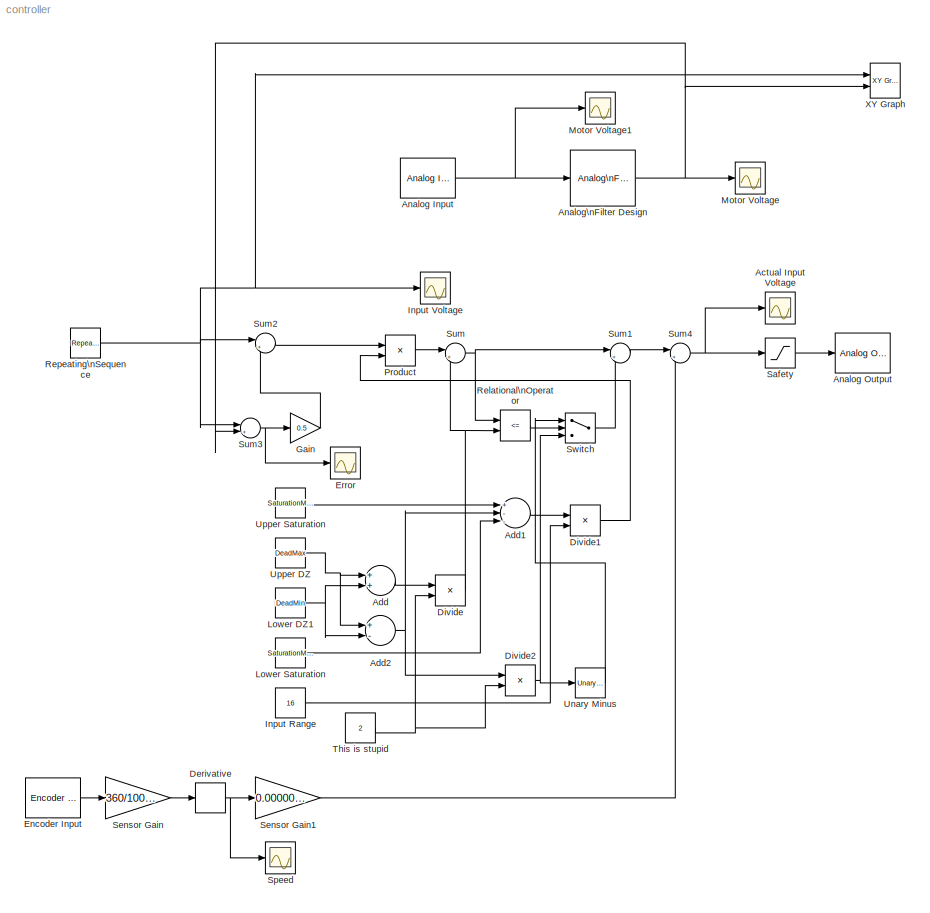
MODEL controller
KIND model
BLOCK [Scope] Actual Input Voltage
  DataFormat = Array
  Floating = off
  MaxDataPoints = 60000
  NumInputPorts = 1
  Ports = [1]
  SampleTime = 0
  SaveName = position5
  TimeRange = 60
  YMax = 9
  YMin = -9
BLOCK [Sum] Add
  CollapseMode = All dimensions
  InputSameDT = off
  OutDataType = sfix(16)
  OutDataTypeMode = Inherit via internal rule
  OutScaling = 2^-10
  Ports = [2, 1]
  SaturateOnIntegerOverflow = off
BLOCK [Sum] Add1
  CollapseMode = All dimensions
  InputSameDT = off
  Inputs = +--
  OutDataType = sfix(16)
  OutDataTypeMode = Inherit via internal rule
  OutScaling = 2^-10
  Ports = [3, 1]
  SaturateOnIntegerOverflow = off
BLOCK [Sum] Add2
  CollapseMode = All dimensions
  InputSameDT = off
  Inputs = +-
  OutDataType = sfix(16)
  OutDataTypeMode = Inherit via internal rule
  OutScaling = 2^-10
  Ports = [2, 1]
  SaturateOnIntegerOverflow = off
BLOCK [Reference] Analog Input  REF=rtwinlib/Analog Input
  AttributesFormatString = Sensoray\\nModel 626 [auto]
  Channels = 1
  DataType = 1
  DrvAddress = 4294967295
  DrvName = Sensoray/Model_626
  DrvOptions = zeros(1,0)
  Ports = [0, 1]
  RangeMode = 1
  SampleTime = 0.001
  SourceBlock = rtwinlib/Analog Input
  SourceType = RTWin Analog Input
  VoltRange = 1
BLOCK [Reference] Analog Output  REF=rtwinlib/Analog Output
  AttributesFormatString = Sensoray\\nModel 626 [auto]
  Channels = 1
  DrvAddress = 4294967295
  DrvName = Sensoray/Model_626
  DrvOptions = zeros(1,0)
  FinalValue = 0
  InitialValue = 0
  Ports = [1]
  RangeMode = 1
  SampleTime = 0.001
  SourceBlock = rtwinlib/Analog Output
  SourceType = RTWin Analog Output
  VoltRange = 1
BLOCK [Reference] Analog\nFilter Design  REF=dsparch4/Analog\nFilter Design
  N = 10
  Ports = [1, 1]
  Rp = 2
  Rs = 40
  SourceBlock = dsparch4/Analog\nFilter Design
  SourceType = Analog Filter Design
  Whi = 80
  Wlo = 12
  filttype = Lowpass
  method = Butterworth
BLOCK [Derivative] Derivative
BLOCK [Product] Divide
  CollapseMode = All dimensions
  InputSameDT = off
  Inputs = */
  OutDataType = sfix(16)
  OutDataTypeMode = Inherit via internal rule
  OutScaling = 2^-10
  Ports = [2, 1]
  RndMeth = Floor
  SaturateOnIntegerOverflow = off
BLOCK [Product] Divide1
  CollapseMode = All dimensions
  InputSameDT = off
  Inputs = */
  OutDataType = sfix(16)
  OutDataTypeMode = Inherit via internal rule
  OutScaling = 2^-10
  Ports = [2, 1]
  RndMeth = Floor
  SaturateOnIntegerOverflow = off
BLOCK [Product] Divide2
  CollapseMode = All dimensions
  InputSameDT = off
  Inputs = */
  OutDataType = sfix(16)
  OutDataTypeMode = Inherit via internal rule
  OutScaling = 2^-10
  Ports = [2, 1]
  RndMeth = Floor
  SaturateOnIntegerOverflow = off
BLOCK [Reference] Encoder Input  REF=rtwinlib/Encoder Input
  AttributesFormatString = Sensoray\\nModel 626 [auto]
  Channels = [4]
  DataType = 1
  DrvAddress = 4294967295
  DrvName = Sensoray/Model_626
  DrvOptions = zeros(1,0)
  IndexPulse = 2
  InputFilter = inf
  Ports = [0, 1]
  QuadMode = 3
  SampleTime = 0.001
  SourceBlock = rtwinlib/Encoder Input
  SourceType = RTWin Encoder Input
BLOCK [Scope] Error
  DataFormat = Array
  Floating = off
  MaxDataPoints = 60000
  NumInputPorts = 1
  Ports = [1]
  SampleTime = 0
  SaveName = position7
  TimeRange = 30
  YMax = 3
  YMin = -8
BLOCK [Gain] Gain
  Gain = 0.5
  OutDataType = sfix(16)
  OutDataTypeMode = Inherit via internal rule
  OutScaling = 2^0
  ParameterDataType = sfix(16)
  ParameterDataTypeMode = Inherit via internal rule
  ParameterScaling = 2^0
  SaturateOnIntegerOverflow = off
BLOCK [Constant] Input Range
  OutDataType = sfix(16)
  OutScaling = 2^0
  Value = 16
BLOCK [Scope] Input Voltage
  DataFormat = Array
  Floating = off
  MaxDataPoints = 60000
  NumInputPorts = 1
  Ports = [1]
  SampleTime = 0
  SaveName = position4
  TimeRange = 60
  YMax = 9
  YMin = -9
BLOCK [Constant] Lower  DZ1
  OutDataType = sfix(16)
  OutScaling = 2^0
  Value = DeadMin
BLOCK [Constant] Lower Saturation
  OutDataType = sfix(16)
  OutScaling = 2^0
  Value = SaturationMin
BLOCK [Scope] Motor Voltage
  DataFormat = Array
  Floating = off
  MaxDataPoints = 60000
  NumInputPorts = 1
  Ports = [1]
  SampleTime = 0
  SaveName = position1
  TimeRange = 60
  YMax = 0.5
  YMin = -8.5
BLOCK [Scope] Motor Voltage1
  DataFormat = Array
  Floating = off
  MaxDataPoints = 60000
  NumInputPorts = 1
  Ports = [1]
  SampleTime = 0
  SaveName = position6
  TimeRange = 60
  YMax = 9
  YMin = -9
BLOCK [Product] Product
  CollapseMode = All dimensions
  InputSameDT = off
  OutDataType = sfix(16)
  OutDataTypeMode = Inherit via internal rule
  OutScaling = 2^0
  Ports = [2, 1]
  SaturateOnIntegerOverflow = off
BLOCK [RelationalOperator] Relational\nOperator
  InputSameDT = off
  LogicOutDataTypeMode = boolean
  Operator = <=
BLOCK [Reference] Repeating\nSequence  REF=simulink/Sources/Repeating\nSequence
  FunctionWithSeparateData = off
  Ports = [0, 1]
  RTWMemSecDataConstants = Inherit from model
  RTWMemSecDataInternal = Inherit from model
  RTWMemSecDataParameters = Inherit from model
  RTWMemSecFuncExecute = Inherit from model
  RTWMemSecFuncInitTerm = Inherit from model
  ShowPortLabels = FromPortIcon
  SourceBlock = simulink/Sources/Repeating\nSequence
  SourceType = Repeating table
  SystemSampleTime = -1
  rep_seq_t = [0 30]
  rep_seq_y = [-8 8]
BLOCK [Saturate] Safety
  LowerLimit = 0.1
  OutDataType = sfix(16)
  OutScaling = 2^0
  SampleTime = 0.001
  UpperLimit = 5
BLOCK [Gain] Sensor Gain
  Gain = 360/10000
  OutDataType = sfix(16)
  OutDataTypeMode = Inherit via internal rule
  OutScaling = 2^0
  ParameterDataType = sfix(16)
  ParameterDataTypeMode = Inherit via internal rule
  ParameterScaling = 2^0
  SaturateOnIntegerOverflow = off
BLOCK [Gain] Sensor Gain1
  Gain = 0.0000005
  OutDataType = sfix(16)
  OutDataTypeMode = Inherit via internal rule
  OutScaling = 2^0
  ParameterDataType = sfix(16)
  ParameterDataTypeMode = Inherit via internal rule
  ParameterScaling = 2^0
  SaturateOnIntegerOverflow = off
BLOCK [Scope] Speed
  DataFormat = Array
  Floating = off
  MaxDataPoints = 60000
  NumInputPorts = 1
  Ports = [1]
  SampleTime = 0
  SaveName = position
  TimeRange = 60
  YMax = 9
  YMin = -9
BLOCK [Sum] Sum
  CollapseMode = All dimensions
  IconShape = round
  InputSameDT = off
  Inputs = |++
  OutDataType = sfix(16)
  OutDataTypeMode = Inherit via internal rule
  OutScaling = 2^0
  Ports = [2, 1]
  SaturateOnIntegerOverflow = off
BLOCK [Sum] Sum1
  CollapseMode = All dimensions
  IconShape = round
  InputSameDT = off
  Inputs = |++
  OutDataType = sfix(16)
  OutDataTypeMode = Inherit via internal rule
  OutScaling = 2^0
  Ports = [2, 1]
  SaturateOnIntegerOverflow = off
BLOCK [Sum] Sum2
  CollapseMode = All dimensions
  IconShape = round
  InputSameDT = off
  Inputs = |++
  OutDataType = sfix(16)
  OutDataTypeMode = Inherit via internal rule
  OutScaling = 2^0
  Ports = [2, 1]
  SaturateOnIntegerOverflow = off
BLOCK [Sum] Sum3
  CollapseMode = All dimensions
  IconShape = round
  InputSameDT = off
  Inputs = |+-
  OutDataType = sfix(16)
  OutDataTypeMode = Inherit via internal rule
  OutScaling = 2^0
  Ports = [2, 1]
  SaturateOnIntegerOverflow = off
BLOCK [Sum] Sum4
  CollapseMode = All dimensions
  IconShape = round
  InputSameDT = off
  Inputs = |+-
  OutDataType = sfix(16)
  OutDataTypeMode = Inherit via internal rule
  OutScaling = 2^0
  Ports = [2, 1]
  SaturateOnIntegerOverflow = off
BLOCK [Switch] Switch
  InputSameDT = off
  OutDataType = sfix(16)
  OutScaling = 2^0
  SaturateOnIntegerOverflow = off
BLOCK [Constant] This is stupid
  OutDataType = sfix(16)
  OutScaling = 2^0
  Value = 2
BLOCK [Reference] Unary Minus  REF=simulink/Math\nOperations/Unary Minus
  DoSatur = off
  Ports = [1, 1]
  SourceBlock = simulink/Math\nOperations/Unary Minus
  SourceType = Unary Minus
BLOCK [Constant] Upper  DZ
  OutDataType = sfix(16)
  OutScaling = 2^0
  Value = DeadMax
BLOCK [Constant] Upper Saturation
  OutDataType = sfix(16)
  OutScaling = 2^0
  Value = SaturationMax
BLOCK [Reference] XY Graph  REF=simulink/Sinks/XY Graph
  FunctionWithSeparateData = off
  Ports = [2]
  RTWMemSecDataConstants = Inherit from model
  RTWMemSecDataInternal = Inherit from model
  RTWMemSecDataParameters = Inherit from model
  RTWMemSecFuncExecute = Inherit from model
  RTWMemSecFuncInitTerm = Inherit from model
  ShowPortLabels = FromPortIcon
  SourceBlock = simulink/Sinks/XY Graph
  SourceType = XY scope.
  SystemSampleTime = -1
  st = -1
  xmax = 8
  xmin = -8
  ymax = 8
  ymin = -8
LINE Add1:1 -> Divide1:1
NET Add2:1 -> Add1:2, Divide2:1
LINE Add:1 -> Divide:1
NET Analog Input:1 -> Analog\nFilter Design:1, Motor Voltage1:1
NET Analog\nFilter Design:1 -> Motor Voltage:1, Sum3:2, XY Graph:2
NET Derivative:1 -> Sensor Gain1:1, Speed:1
LINE Divide1:1 -> Product:2
NET Divide2:1 -> Switch:3, Unary Minus:1
NET Divide:1 -> Relational\nOperator:2, Sum:2
LINE Encoder Input:1 -> Sensor Gain:1
LINE Gain:1 -> Sum2:2
LINE Input Range:1 -> Divide1:2
NET Lower  DZ1:1 -> Add2:2, Add:2
LINE Lower Saturation:1 -> Add1:3
LINE Product:1 -> Sum:1
LINE Relational\nOperator:1 -> Switch:2
NET Repeating\nSequence:1 -> Input Voltage:1, Sum2:1, Sum3:1, XY Graph:1
LINE Safety:1 -> Analog Output:1
LINE Sensor Gain1:1 -> Sum4:2
LINE Sensor Gain:1 -> Derivative:1
LINE Sum1:1 -> Sum4:1
LINE Sum2:1 -> Product:1
NET Sum3:1 -> Error:1, Gain:1
NET Sum4:1 -> Actual Input Voltage:1, Safety:1
NET Sum:1 -> Relational\nOperator:1, Sum1:1
LINE Switch:1 -> Sum1:2
NET This is stupid:1 -> Divide2:2, Divide:2
LINE Unary Minus:1 -> Switch:1
NET Upper  DZ:1 -> Add2:1, Add:1
LINE Upper Saturation:1 -> Add1:1
note: NET lines group one-source signal fan-out (src -> all destinations, sorted); 1:1 wires keep LINE
